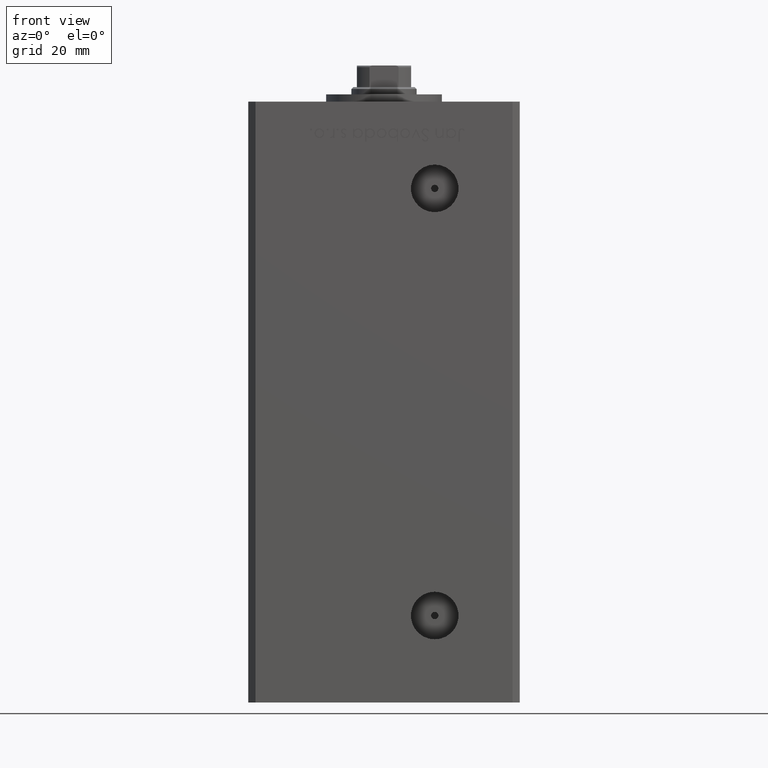
[diagram: clean part render]
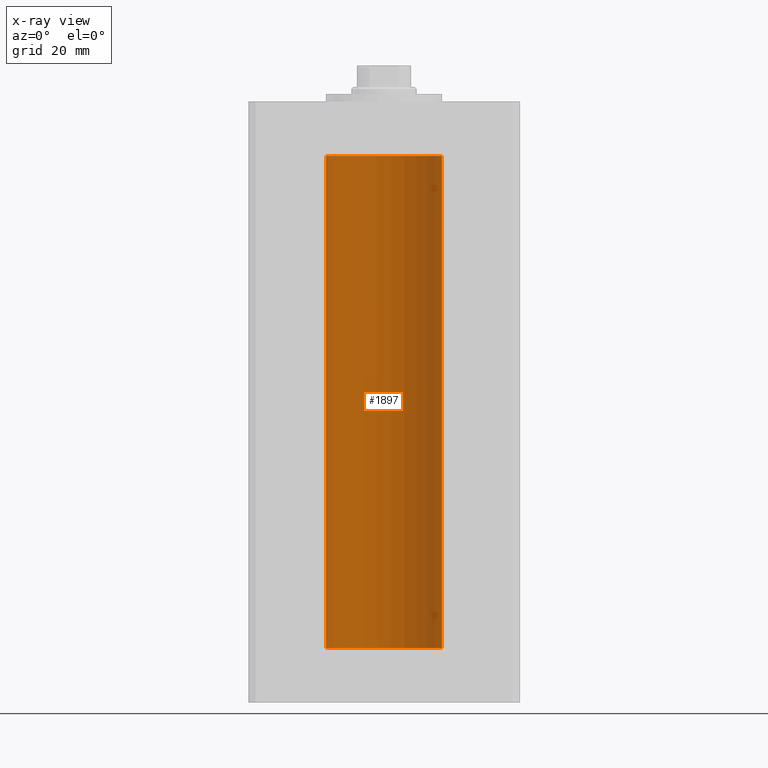
[diagram: x-ray — body ghosted, one internal face saturated and labeled with its STEP entity id]
A machine part, front view, then the same camera in x-ray: the body is ghosted and one INTERNAL B-rep face — a face not visible from any outside direction — is saturated and labeled: STEP entity #1897.
In plain terms, the highlighted cylindrical surface (partial cylindrical patch) has radius 16 mm, axis along (-0, -0, -1).
Its self-contained STEP definition (entity closure, byte-faithful):
#767 = DIRECTION ( 'NONE',  ( 1.000000000000000000, 0.000000000000000000, 0.000000000000000000 ) ) ;
#1031 = DIRECTION ( 'NONE',  ( -0.000000000000000000, 0.000000000000000000, 1.000000000000000000 ) ) ;
#1897 = ADVANCED_FACE ( 'NONE', ( #43191 ), #18630, .F. ) ;
#2183 = CARTESIAN_POINT ( 'NONE',  ( 16.00000000000000000, 1.959434878635765131E-15, 136.0000000000000000 ) ) ;
#2853 = EDGE_CURVE ( 'NONE', #12023, #32741, #43969, .T. ) ;
#3057 = DIRECTION ( 'NONE',  ( -1.000000000000000000, 0.000000000000000000, 0.000000000000000000 ) ) ;
#5179 = CIRCLE ( 'NONE', #32982, 16.00000000000000000 ) ;
#5195 = EDGE_CURVE ( 'NONE', #35406, #12023, #30670, .T. ) ;
#7551 = CARTESIAN_POINT ( 'NONE',  ( -16.00000000000000000, 0.000000000000000000, 136.0000000000000000 ) ) ;
#8628 = VECTOR ( 'NONE', #18285, 1000.000000000000000 ) ;
#11078 = AXIS2_PLACEMENT_3D ( 'NONE', #40649, #1031, #767 ) ;
#12023 = VERTEX_POINT ( 'NONE', #44288 ) ;
#17741 = VERTEX_POINT ( 'NONE', #37527 ) ;
#18285 = DIRECTION ( 'NONE',  ( -0.000000000000000000, -0.000000000000000000, -1.000000000000000000 ) ) ;
#18630 = CYLINDRICAL_SURFACE ( 'NONE', #29741, 16.00000000000000000 ) ;
#20153 = ORIENTED_EDGE ( 'NONE', *, *, #52187, .T. ) ;
#23109 = DIRECTION ( 'NONE',  ( -0.000000000000000000, -0.000000000000000000, -1.000000000000000000 ) ) ;
#23404 = DIRECTION ( 'NONE',  ( -0.000000000000000000, -0.000000000000000000, -1.000000000000000000 ) ) ;
#23732 = DIRECTION ( 'NONE',  ( -0.000000000000000000, 0.000000000000000000, 1.000000000000000000 ) ) ;
#23936 = LINE ( 'NONE', #7551, #37386 ) ;
#29741 = AXIS2_PLACEMENT_3D ( 'NONE', #43449, #23109, #3057 ) ;
#30670 = LINE ( 'NONE', #2183, #8628 ) ;
#30923 = ORIENTED_EDGE ( 'NONE', *, *, #5195, .F. ) ;
#31647 = CARTESIAN_POINT ( 'NONE',  ( 0.000000000000000000, 0.000000000000000000, 136.0000000000000000 ) ) ;
#32741 = VERTEX_POINT ( 'NONE', #44663 ) ;
#32982 = AXIS2_PLACEMENT_3D ( 'NONE', #31647, #23732, #39848 ) ;
#35406 = VERTEX_POINT ( 'NONE', #39152 ) ;
#37386 = VECTOR ( 'NONE', #23404, 1000.000000000000000 ) ;
#37527 = CARTESIAN_POINT ( 'NONE',  ( -16.00000000000000000, 0.000000000000000000, 136.0000000000000000 ) ) ;
#39152 = CARTESIAN_POINT ( 'NONE',  ( 16.00000000000000000, 1.959434878635765131E-15, 136.0000000000000000 ) ) ;
#39848 = DIRECTION ( 'NONE',  ( 1.000000000000000000, 0.000000000000000000, 0.000000000000000000 ) ) ;
#39998 = EDGE_CURVE ( 'NONE', #17741, #32741, #23936, .T. ) ;
#40649 = CARTESIAN_POINT ( 'NONE',  ( 0.000000000000000000, 0.000000000000000000, 0.000000000000000000 ) ) ;
#42994 = ORIENTED_EDGE ( 'NONE', *, *, #2853, .F. ) ;
#43191 = FACE_OUTER_BOUND ( 'NONE', #46254, .T. ) ;
#43449 = CARTESIAN_POINT ( 'NONE',  ( 0.000000000000000000, 0.000000000000000000, 136.0000000000000000 ) ) ;
#43969 = CIRCLE ( 'NONE', #11078, 16.00000000000000000 ) ;
#44288 = CARTESIAN_POINT ( 'NONE',  ( 16.00000000000000000, 1.959434878635765131E-15, 0.000000000000000000 ) ) ;
#44663 = CARTESIAN_POINT ( 'NONE',  ( -16.00000000000000000, 0.000000000000000000, 0.000000000000000000 ) ) ;
#46254 = EDGE_LOOP ( 'NONE', ( #30923, #20153, #51806, #42994 ) ) ;
#51806 = ORIENTED_EDGE ( 'NONE', *, *, #39998, .T. ) ;
#52187 = EDGE_CURVE ( 'NONE', #35406, #17741, #5179, .T. ) ;